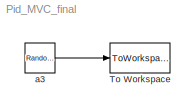
MODEL Pid_MVC_final
KIND model
BLOCK [ToWorkspace] To Workspace
  MaxDataPoints = inf
  Ports = [1]
  SID = 13
  SampleTime = -1
  VariableName = y_a
BLOCK [RandomNumber] a3
  SID = 18
  SampleTime = 0.1
LINE a3:1 -> To Workspace:1
